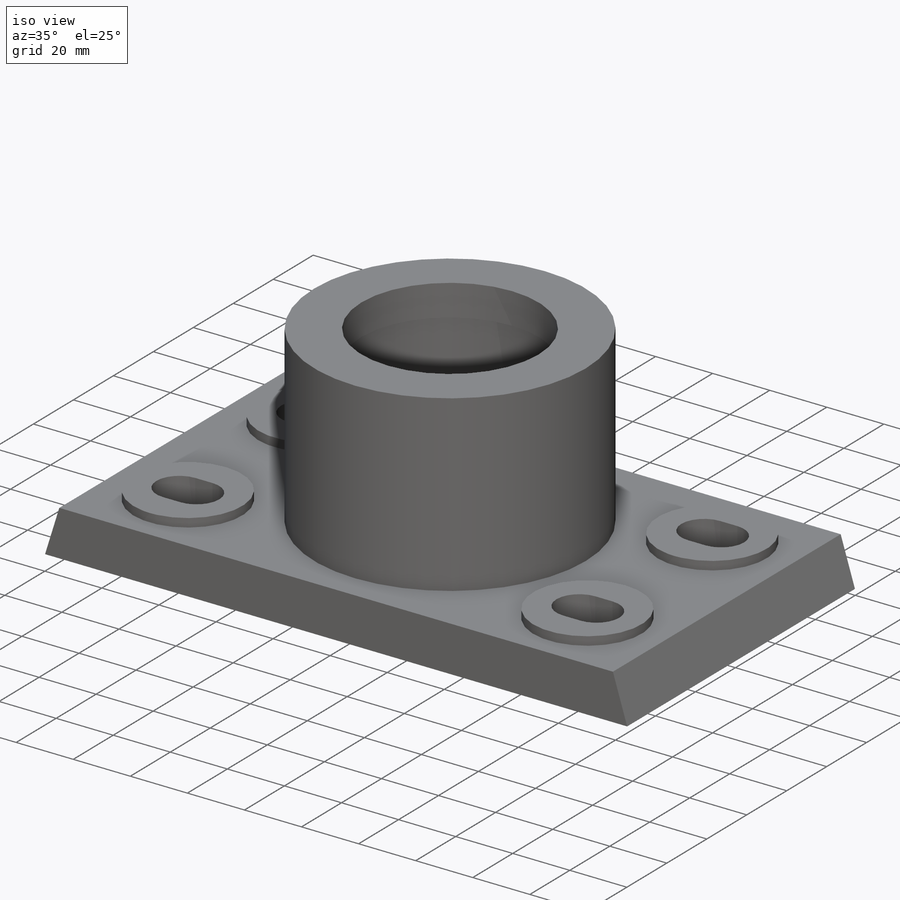
[diagram: iso view]
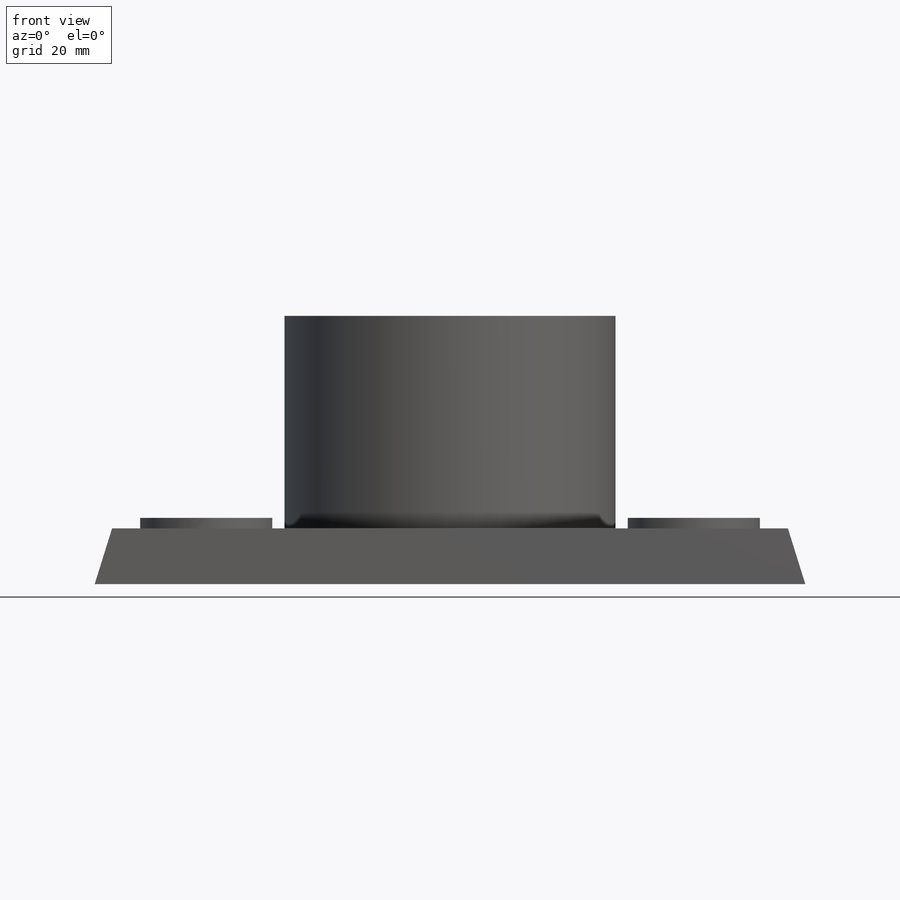
[diagram: front view]
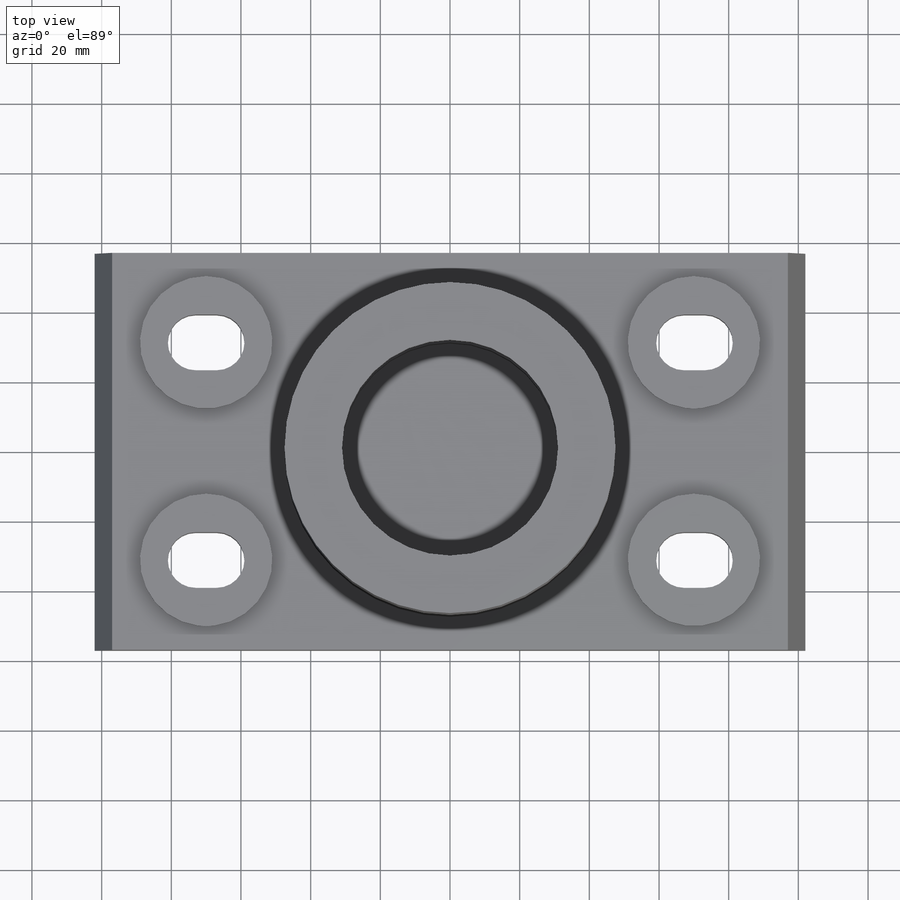
[diagram: top view]
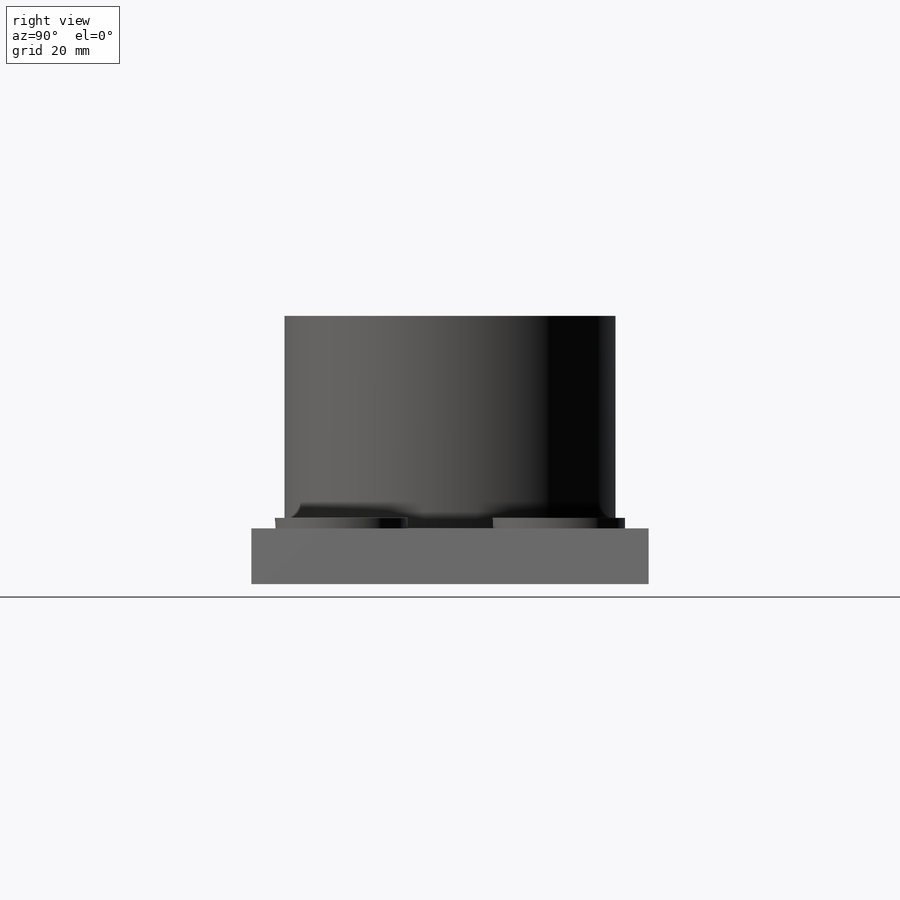
[diagram: right view]
SOLIDWORKS PART (.sldprt)
format: sldprt  version: not decoded by parser v0  size: 227,328 bytes
history: native  units: mm
features: sketch x5, extrude x2, cut_extrude x2, material x1, revolve x1, chamfer x1 (+12 scaffold rows collapsed)
feature tree (24):
  scaffold x12  (default folders/planes/origin — collapsed)
  material  "Material <not specified>"
  sketch  "Sketch1"  dims[D1=31.0mm D2=31.0mm D3=32.5mm D4=11.0mm D5=37.0mm D6=13.0mm D7=16.0mm D8=47.5mm D9=37.0mm]
  revolve  "Revolve1"  Angle=360deg
  sketch  "Sketch4"  dims[D1=114.0mm D2=204.0mm]
  extrude  "Boss-Extrude1"  Depth=16mm
  chamfer  "Chamfer1"  Distance=5mm
  sketch  "Sketch5"  dims[D1=10.0mm D2=10.0mm D3=10.0mm D4=6.5mm]
  cut_extrude  "Cut-Extrude1"  Depth=3mm
  sketch  "Sketch6"  dims[D1=38.0mm D2=70.0mm]
  extrude  "Boss-Extrude2"  Depth=3mm
  sketch  "Sketch7"  dims[D1=8.0mm D2=22.0mm]
  cut_extrude  "Cut-Extrude2"  [1 undecoded]
decode coverage: 10 of 11 modeling features carry decoded parameters
note: 1 parameter value undecoded
note: suppression state not decoded; provenance and decode notes live in map.json
